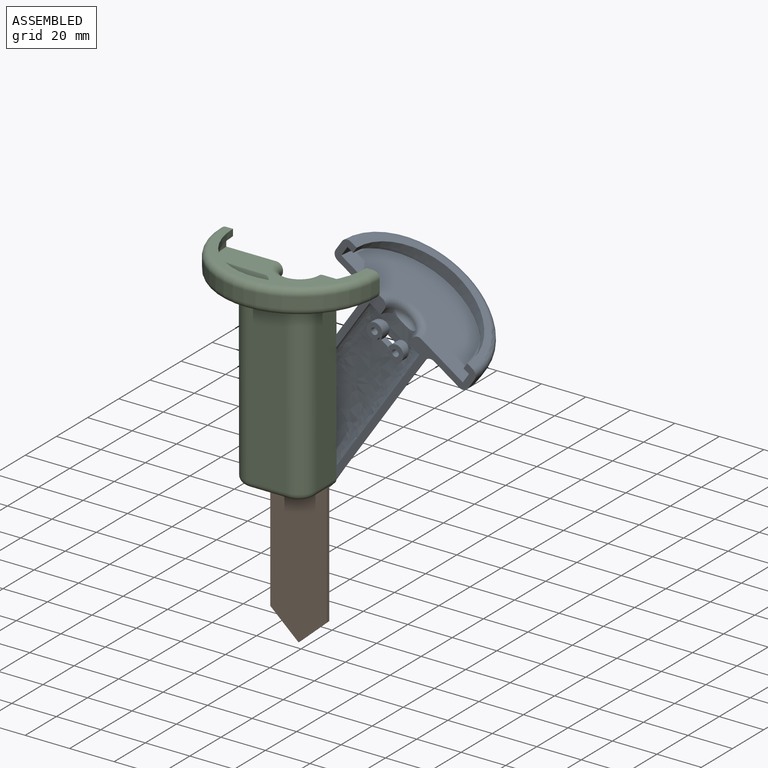
[diagram: assembled view]
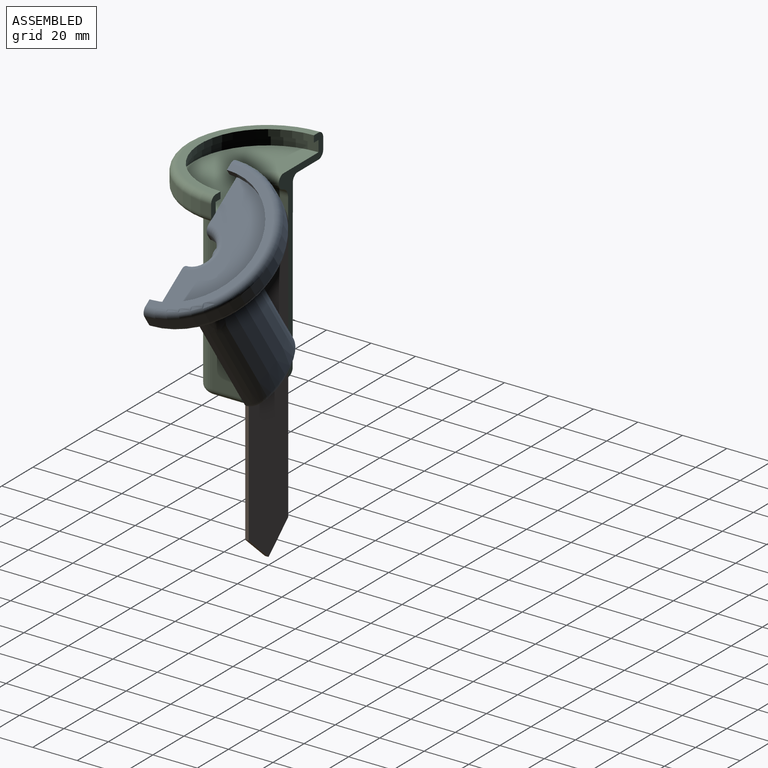
[diagram: assembled view, second angle]
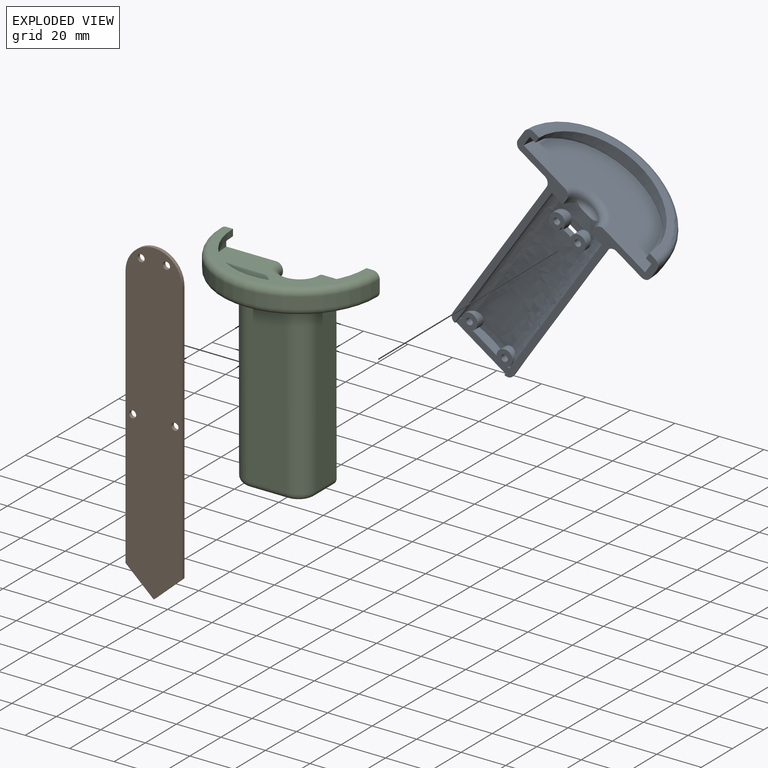
[diagram: exploded view]
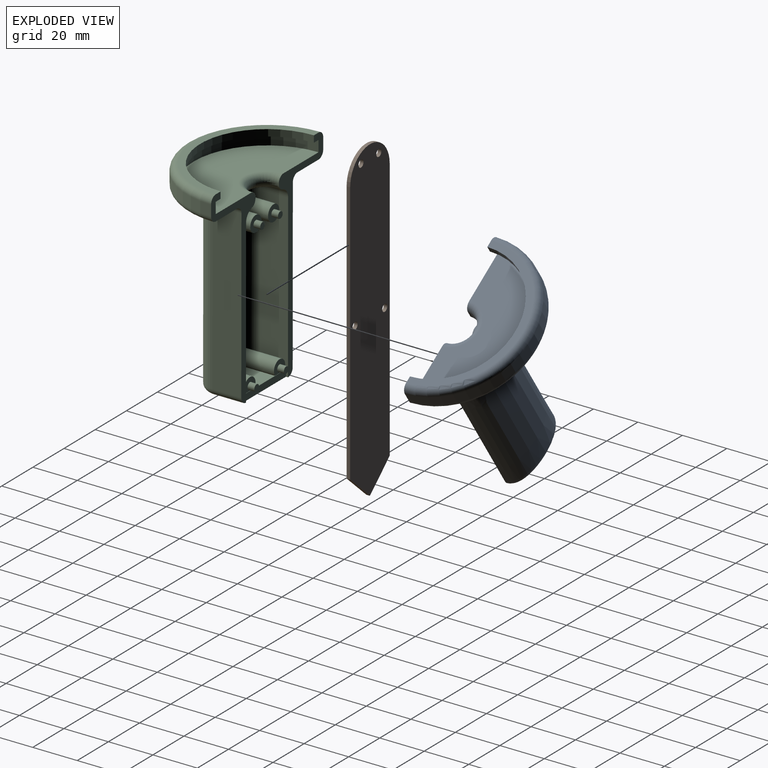
[diagram: exploded view, second angle]
ASSEMBLY  parts=3 mates=3
PART A: 53 faces, bbox 78x40.4x92.1 mm
  f0: cylinder r=7.5mm len=5.01mm, axis (0,0,1), area 16.4mm2, adj f3,f13,f14,f49
  f1: plane 66x33mm, normal (0,0,1), area 1537.4mm2, adj f4,f14,f44,f49
  f2: plane 7.92x5.01mm, normal (0,0,-1), area 21.9mm2, adj f4,f13,f43
  f3: plane 7.92x5.01mm, normal (0,0,-1), area 21.9mm2, adj f0,f13,f14
  f4: plane 89.1x28.6mm, normal (0,1,0), area 366.6mm2, adj f1,f2,f11,f13,f30,f41,f42,f43
  f5: plane 0.03x0mm, normal (0,0,-1), area 0mm2, adj f30,f34,f40
  f6: plane 7.2x7.2mm, normal (0,1,0), area 32.8mm2, adj f7,f19,f38,f39
  f7: cylinder r=3.6mm len=7.2mm, axis (0,1,0), area 94.9mm2, adj f6,f13,f38,f39
  f8: plane 0.9x0.18mm, normal (0,0,-1), area 0.1mm2, adj f13,f33,f34
  f9: cylinder r=3.6mm len=7.2mm, axis (0,1,0), area 42.3mm2, adj f13,f15,f28,f29,f33
  f10: cylinder r=3.6mm len=7.2mm, axis (0,1,0), area 42.3mm2, adj f13,f16,f27,f29,f33
  f11: extruded ~75x33mm, area 3021.6mm2, adj f4,f14,f31,f36,f37,f38,f39,f40
  f12: plane 0.9x0.18mm, normal (0,0,-1), area 0.1mm2, adj f13,f32,f33
  f13: extruded ~78x27mm, area 2164.6mm2, adj f0,f2,f3,f4,f7,f8,f9,f10
  f14: plane 92.1x28.6mm, normal (0,1,0), area 373.7mm2, adj f0,f1,f3,f11,f13,f32,f40,f41
  f15: plane 7.2x7.2mm, normal (0,1,0), area 33.6mm2, adj f9,f25
  f16: plane 7.2x7.2mm, normal (0,1,0), area 33.6mm2, adj f10,f23
  f17: plane 7.2x7.2mm, normal (0,1,0), area 32.5mm2, adj f18,f21,f37,f39
  f18: cylinder r=3.6mm len=7.2mm, axis (0,1,0), area 93.9mm2, adj f13,f17,f37,f39
  f19: cylinder r=1.5mm len=3mm, axis (0,1,0), area 28.3mm2, adj f6,f20
  f20: plane 3x3mm, normal (0,1,0), area 7.1mm2, adj f19
  f21: cylinder r=1.5mm len=3mm, axis (0,1,0), area 28.3mm2, adj f17,f22
  f22: plane 3x3mm, normal (0,1,0), area 7.1mm2, adj f21
  f23: cylinder r=1.5mm len=3mm, axis (0,1,0), area 28.3mm2, adj f16,f24
  f24: plane 3x3mm, normal (0,1,0), area 7.1mm2, adj f23
  f25: cylinder r=1.5mm len=3mm, axis (0,1,0), area 28.3mm2, adj f15,f26
  f26: plane 3x3mm, normal (0,1,0), area 7.1mm2, adj f25
  f27: plane 1.17x0.81mm, normal (0,0,1), area 0.5mm2, adj f10,f13,f33
  f28: plane 1.17x0.81mm, normal (0,0,1), area 0.5mm2, adj f9,f13,f33
  f29: plane 13.03x4.6mm, normal (0,0,1), area 57.1mm2, adj f9,f10,f13,f33
  f30: plane 3x3mm, normal (0,1,0), area 7.1mm2, adj f4,f5,f31,f34,f40
  f31: extruded ~0.14x0.11mm, area 0mm2, adj f11,f30,f40
  f32: plane 3x0.9mm, normal (1,0,0), area 2.7mm2, adj f12,f14,f33,f40
  f33: plane 27x3mm, normal (0,1,0), area 67.5mm2, adj f8,f9,f10,f12,f27,f28,f29,f32
  f34: plane 3x0.9mm, normal (-1,0,0), area 2.7mm2, adj f5,f8,f30,f33,f40
  f35: plane 26.64x4.6mm, normal (0,0,-1), area 92.4mm2, adj f33,f40
  f36: plane 6.01x3.15mm, normal (0,0,1), area 18mm2, adj f11,f13,f37,f38
  f37: plane 7.57x4mm, normal (1,0,0), area 21mm2, adj f11,f13,f17,f18,f36,f39
  f38: plane 7.57x4mm, normal (-1,0,0), area 20.1mm2, adj f6,f7,f11,f13,f36,f39
  f39: plane 7.71x6.01mm, normal (0,0,-1), area 25.8mm2, adj f6,f7,f11,f13,f17,f18,f37,f38
  f40: bspline ~33.01x8.7mm, area 175.1mm2, adj f5,f11,f14,f30,f31,f32,f33,f34
  f41: plane 66x33.01mm, normal (0,0,-1), area 1350.4mm2, adj f4,f14,f51,f52
  f42: cylinder r=36mm len=72mm, axis (0,0,-1), area 565.5mm2, adj f4,f14,f48,f51
  f43: cylinder r=7.5mm len=5.01mm, axis (0,0,1), area 16.4mm2, adj f2,f4,f13,f49
  f44: cylinder r=33mm len=66mm, axis (0,0,-1), area 518.4mm2, adj f1,f4,f14,f45
  f45: plane 66x33mm, normal (0,0,-1), area 296.9mm2, adj f4,f14,f44,f46
  f46: cylinder r=30mm len=60mm, axis (0,0,-1), area 282.7mm2, adj f4,f14,f45,f47
  f47: plane 66x33mm, normal (0,0,1), area 296.9mm2, adj f4,f14,f46,f48
  f48: torus R=33mm, axis (0,0,1), area 516.8mm2, adj f4,f14,f42,f47
  f49: torus R=10.5mm, axis (0,0,1), area 127.2mm2, adj f0,f1,f4,f14,f43,f50
  f50: torus R=4.5mm, axis (0,0,1), area 0mm2, adj f13,f49
  f51: torus R=33mm, axis (0,0,1), area 516.8mm2, adj f4,f14,f41,f42
  f52: bspline ~39.02x12.87mm, area 207.5mm2, adj f4,f11,f14,f41
PART B: 11 faces, bbox 25.4x1.6x142.9 mm
  f0: plane 118.76x1.6mm, normal (-1,0,0), area 190mm2, adj f1,f7,f9,f10
  f1: plane 12.69x11.43mm, normal (-0.67,0,-0.74), area 27.3mm2, adj f0,f2,f9,f10
  f2: plane 12.69x11.43mm, normal (0.67,0,-0.74), area 27.3mm2, adj f1,f3,f9,f10
  f3: plane 118.76x1.6mm, normal (1,0,0), area 190mm2, adj f2,f7,f9,f10
  f4: cylinder r=1.6mm len=3.2mm, axis (0,1,0), area 16.1mm2, adj f9,f10
  f5: cylinder r=1.6mm len=3.2mm, axis (0,1,0), area 16.1mm2, adj f9,f10
  f6: cylinder r=1.6mm len=3.2mm, axis (0,1,0), area 16.1mm2, adj f9,f10
  f7: cylinder r=12.69mm len=25.38mm, axis (0,1,0), area 63.8mm2, adj f0,f3,f9,f10
  f8: cylinder r=1.6mm len=3.2mm, axis (0,1,0), area 16.1mm2, adj f9,f10
  f9: plane 142.88x25.38mm, normal (0,-1,0), area 3380mm2, adj f0,f1,f2,f3,f4,f5,f6,f7
  f10: plane 142.88x25.38mm, normal (0,1,0), area 3380mm2, adj f0,f1,f2,f3,f4,f5,f6,f7
PART C: 68 faces, bbox 78.1x41.9x92.2 mm
  f0: cylinder r=7.5mm len=4.4mm, axis (0,0,1), area 0.7mm2, adj f27,f62,f64,f65
  f1: plane 66x33mm, normal (0,0,1), area 1537.4mm2, adj f2,f27,f46,f62
  f2: plane 92.2x28.7mm, normal (0,1,0), area 378.2mm2, adj f1,f11,f16,f23,f43,f44,f45,f46
  f3: cylinder r=3.6mm len=17mm, axis (0,-1,0), area 255.5mm2, adj f4,f14,f18,f42
  f4: plane 7.2x5.6mm, normal (0,1,0), area 26.9mm2, adj f3,f38,f42
  f5: cylinder r=3.6mm len=17mm, axis (0,-1,0), area 255.5mm2, adj f6,f14,f15,f42
  f6: plane 7.2x5.6mm, normal (0,1,0), area 26.9mm2, adj f5,f36,f42
  f7: plane 2.1x1.17mm, normal (0,1,0), area 0.9mm2, adj f15,f24,f30
  f8: plane 2.27x1.37mm, normal (0,1,0), area 1.1mm2, adj f18,f24,f28
  f9: plane 75x17mm, normal (0,-1,0), area 1275mm2, adj f10,f13,f52,f57
  f10: cylinder r=8mm len=75mm, axis (0,0,-1), area 942.5mm2, adj f9,f11,f51,f56
  f11: plane 75x13mm, normal (1,0,0), area 975mm2, adj f2,f10,f50,f55
  f12: plane 75x13mm, normal (-1,0,0), area 975mm2, adj f13,f27,f54,f59
  f13: cylinder r=8mm len=75mm, axis (0,0,-1), area 942.5mm2, adj f9,f12,f53,f58
  f14: plane 70x17mm, normal (0,1,0), area 1089mm2, adj f3,f5,f15,f18,f24,f28,f30,f42
  f15: cylinder r=5mm len=70mm, axis (0,0,-1), area 519.7mm2, adj f5,f7,f14,f16,f26,f30,f42
  f16: plane 73x13mm, normal (-1,0,0), area 912.7mm2, adj f2,f15,f25,f40,f42,f50
  f17: plane 73x13mm, normal (1,0,0), area 912.7mm2, adj f18,f21,f27,f40,f42,f54
  f18: cylinder r=5mm len=70mm, axis (0,0,-1), area 520.4mm2, adj f3,f8,f14,f17,f22,f28,f42
  f19: plane 17x6.84mm, normal (0,0,-1), area 64.6mm2, adj f21,f24,f25,f63
  f20: bspline ~4.94x4.52mm, area 1.9mm2, adj f21,f27,f65
  f21: cylinder r=5mm len=13mm, axis (0,-1,0), area 94.9mm2, adj f17,f19,f20,f22,f64
  f22: sphere r=5mm, area 50.6mm2, adj f18,f21,f24
  f23: bspline ~4.94x4.52mm, area 1.9mm2, adj f2,f25,f60
  f24: cylinder r=5mm len=17mm, axis (1,0,0), area 133.5mm2, adj f7,f8,f14,f19,f22,f26,f28,f30
  f25: cylinder r=5mm len=13mm, axis (0,1,0), area 94.9mm2, adj f16,f19,f23,f26,f61
  f26: sphere r=5mm, area 39.3mm2, adj f15,f24,f25
  f27: plane 92.2x28.7mm, normal (0,1,0), area 378.2mm2, adj f0,f1,f12,f17,f20,f43,f44,f46
  f28: cylinder r=3.6mm len=17mm, axis (0,-1,0), area 384.5mm2, adj f8,f14,f18,f24,f29
  f29: plane 7.2x7.2mm, normal (0,1,0), area 33.6mm2, adj f28,f32
  f30: cylinder r=3.6mm len=17mm, axis (0,-1,0), area 384.5mm2, adj f7,f14,f15,f24,f31
  f31: plane 7.2x7.2mm, normal (0,1,0), area 33.6mm2, adj f30,f34
  f32: cylinder r=1.5mm len=3mm, axis (0,-1,0), area 28.3mm2, adj f29,f33
  f33: plane 3x3mm, normal (0,1,0), area 7.1mm2, adj f32
  f34: cylinder r=1.5mm len=3mm, axis (0,-1,0), area 28.3mm2, adj f31,f35
  f35: plane 3x3mm, normal (0,1,0), area 7.1mm2, adj f34
  f36: cylinder r=1.5mm len=3mm, axis (0,-1,0), area 28.3mm2, adj f6,f37
  f37: plane 3x3mm, normal (0,1,0), area 7.1mm2, adj f36
  f38: cylinder r=1.5mm len=3mm, axis (0,-1,0), area 28.3mm2, adj f4,f39
  f39: plane 3x3mm, normal (0,1,0), area 7.1mm2, adj f38
  f40: plane 27x3mm, normal (0,1,0), area 81mm2, adj f16,f17,f41,f42
  f41: plane 27x17.1mm, normal (0,0,-1), area 451mm2, adj f40,f50,f51,f52,f53,f54
  f42: plane 27x17.1mm, normal (0,0,1), area 252.3mm2, adj f3,f4,f5,f6,f14,f15,f16,f17
  f43: plane 66x33mm, normal (0,0,-1), area 826.5mm2, adj f2,f27,f55,f56,f57,f58,f59,f67
  f44: cylinder r=36mm len=72mm, axis (0,0,-1), area 565.5mm2, adj f2,f27,f66,f67
  f45: cylinder r=7.5mm len=4.4mm, axis (0,0,1), area 0.7mm2, adj f2,f60,f61,f62
  f46: cylinder r=33mm len=66mm, axis (0,0,-1), area 518.4mm2, adj f1,f2,f27,f47
  f47: plane 66x33mm, normal (0,0,-1), area 296.9mm2, adj f2,f27,f46,f48
  f48: cylinder r=30mm len=60mm, axis (0,0,-1), area 282.7mm2, adj f2,f27,f47,f49
  f49: plane 66x33mm, normal (0,0,1), area 296.9mm2, adj f2,f27,f48,f66
  f50: cylinder r=3mm len=13mm, axis (0,-1,0), area 61.3mm2, adj f2,f11,f16,f41,f51
  f51: torus R=5mm, axis (0,0,-1), area 51.1mm2, adj f10,f41,f50,f52
  f52: cylinder r=3mm len=17mm, axis (-1,0,0), area 80.1mm2, adj f9,f41,f51,f53
  f53: torus R=5mm, axis (0,0,-1), area 51.1mm2, adj f13,f41,f52,f54
  f54: cylinder r=3mm len=13mm, axis (0,1,0), area 61.3mm2, adj f12,f17,f27,f41,f53
  f55: cylinder r=3mm len=13mm, axis (0,-1,0), area 61.3mm2, adj f2,f11,f43,f56
  f56: torus R=11mm, axis (0,0,1), area 67.3mm2, adj f10,f43,f55,f57
  f57: cylinder r=3mm len=17mm, axis (-1,0,0), area 80.1mm2, adj f9,f43,f56,f58
  f58: torus R=11mm, axis (0,0,1), area 67.3mm2, adj f13,f43,f57,f59
  f59: cylinder r=3mm len=13mm, axis (0,1,0), area 61.3mm2, adj f12,f27,f43,f58
  f60: bspline ~3.1x2.34mm, area 2.7mm2, adj f2,f23,f45,f61
  f61: bspline ~7.45x4.54mm, area 19.4mm2, adj f25,f45,f60,f63
  f62: torus R=10.5mm, axis (0,0,1), area 127.2mm2, adj f0,f1,f2,f27,f45,f63
  f63: torus R=10.5mm, axis (0,0,1), area 76.4mm2, adj f19,f61,f62,f64
  f64: bspline ~7.24x4.53mm, area 19.4mm2, adj f0,f21,f63,f65
  f65: bspline ~3.1x2.34mm, area 2.7mm2, adj f0,f20,f27,f64
  f66: torus R=33mm, axis (0,0,1), area 516.8mm2, adj f2,f27,f44,f49
  f67: torus R=33mm, axis (0,0,1), area 516.8mm2, adj f2,f27,f43,f44
PLACE A rot(axis=(0.29,0,0.96),180deg) t=(0.52,-0.8,-0.76)mm
PLACE B at identity fixed
PLACE C rot(axis=(0,-1,0),0.1deg) t=(0,-0.7,-6.46)mm
MATE planar C.f40 <-> B.f5  axis (0,1,0) through (0,-1.6,-7.96)mm
MATE cylindrical B.f6 <-> C.f5  axis (0,-1,0) through (9.51,-1.6,-4.45)mm
MATE revolute B.f6 <-> A.f9  axis (0,1,0) through (9.51,0,-4.45)mm
